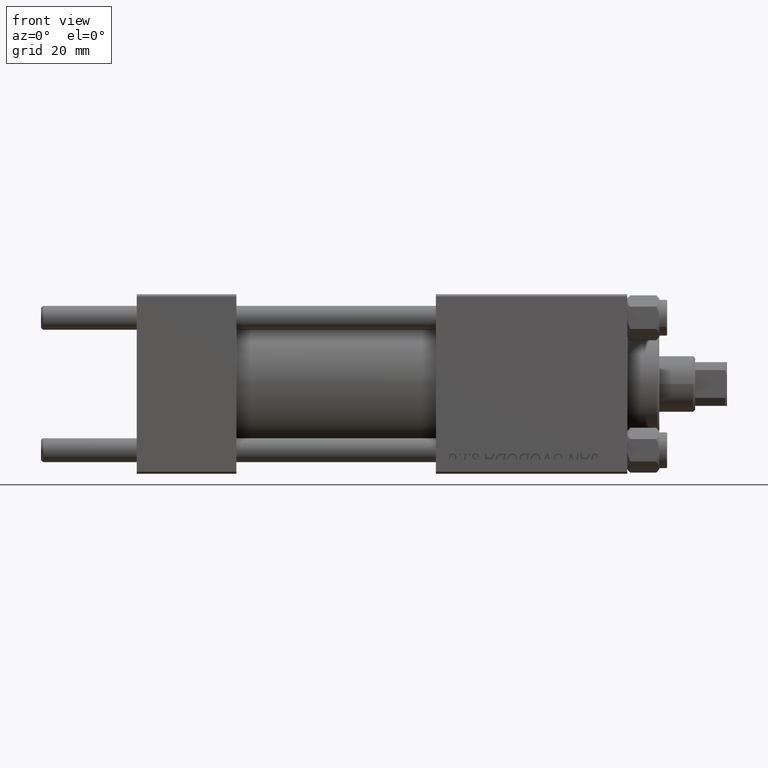
[diagram: clean part render]
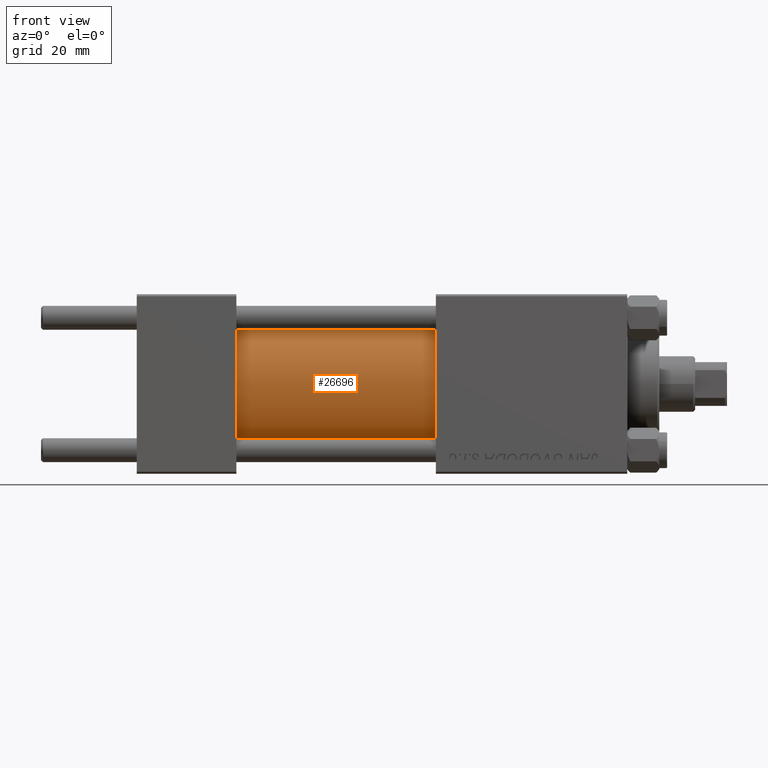
[diagram: same view with one face highlighted and labeled with its STEP entity id]
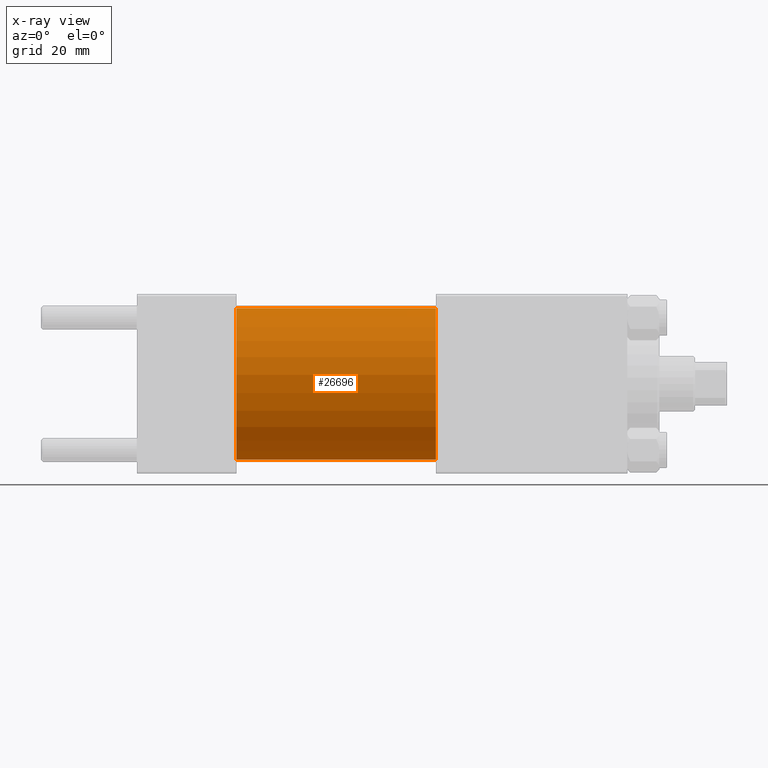
[diagram: x-ray of the same camera — body ghosted, the highlighted face saturated]
A machine part, front view. The second image highlights one B-rep face of the part: STEP entity #26696.
The next image is the same camera in x-ray: the body ghosted, the highlighted face saturated — about 0% of this face is hidden behind the body in this view.
In plain terms, the highlighted cylindrical surface (partial cylindrical patch) has radius 19 mm, axis along (-1, -0, -0).
Its self-contained STEP definition (entity closure, byte-faithful):
#1327 = AXIS2_PLACEMENT_3D ( 'NONE', #24043, #47459, #35855 ) ;
#4139 = DIRECTION ( 'NONE',  ( 1.000000000000000000, 0.000000000000000000, 0.000000000000000000 ) ) ;
#6711 = ORIENTED_EDGE ( 'NONE', *, *, #24702, .F. ) ;
#7908 = VERTEX_POINT ( 'NONE', #21181 ) ;
#9449 = DIRECTION ( 'NONE',  ( 0.000000000000000000, 0.000000000000000000, 1.000000000000000000 ) ) ;
#10305 = EDGE_CURVE ( 'NONE', #29652, #7908, #41830, .T. ) ;
#10868 = ORIENTED_EDGE ( 'NONE', *, *, #10305, .T. ) ;
#11763 = VERTEX_POINT ( 'NONE', #22061 ) ;
#12226 = LINE ( 'NONE', #49771, #33546 ) ;
#14812 = EDGE_LOOP ( 'NONE', ( #22509, #6711, #25976, #10868 ) ) ;
#15234 = DIRECTION ( 'NONE',  ( 0.000000000000000000, 0.000000000000000000, -1.000000000000000000 ) ) ;
#16550 = CIRCLE ( 'NONE', #30326, 19.00000000000000000 ) ;
#17649 = EDGE_CURVE ( 'NONE', #11763, #7908, #33033, .T. ) ;
#21181 = CARTESIAN_POINT ( 'NONE',  ( 25.00000000000000000, 2.326828918379970970E-15, -19.00000000000000000 ) ) ;
#21545 = DIRECTION ( 'NONE',  ( 1.000000000000000000, -0.000000000000000000, 0.000000000000000000 ) ) ;
#22061 = CARTESIAN_POINT ( 'NONE',  ( 75.00000000000001421, 2.326828918379970970E-15, -19.00000000000000000 ) ) ;
#22509 = ORIENTED_EDGE ( 'NONE', *, *, #17649, .F. ) ;
#23543 = CARTESIAN_POINT ( 'NONE',  ( 75.00000000000001421, 0.000000000000000000, 0.000000000000000000 ) ) ;
#24043 = CARTESIAN_POINT ( 'NONE',  ( 75.00000000000001421, 0.000000000000000000, 0.000000000000000000 ) ) ;
#24702 = EDGE_CURVE ( 'NONE', #45552, #11763, #16550, .T. ) ;
#25071 = CARTESIAN_POINT ( 'NONE',  ( 25.00000000000000000, 0.000000000000000000, 0.000000000000000000 ) ) ;
#25976 = ORIENTED_EDGE ( 'NONE', *, *, #27410, .T. ) ;
#26696 = ADVANCED_FACE ( 'NONE', ( #43929 ), #36114, .T. ) ;
#27410 = EDGE_CURVE ( 'NONE', #45552, #29652, #12226, .T. ) ;
#29015 = CARTESIAN_POINT ( 'NONE',  ( 75.00000000000001421, 2.326828918379970970E-15, -19.00000000000000000 ) ) ;
#29652 = VERTEX_POINT ( 'NONE', #31113 ) ;
#30326 = AXIS2_PLACEMENT_3D ( 'NONE', #23543, #4139, #15234 ) ;
#31113 = CARTESIAN_POINT ( 'NONE',  ( 25.00000000000000000, 0.000000000000000000, 19.00000000000000000 ) ) ;
#33033 = LINE ( 'NONE', #29015, #49445 ) ;
#33378 = CARTESIAN_POINT ( 'NONE',  ( 75.00000000000001421, 0.000000000000000000, 19.00000000000000000 ) ) ;
#33546 = VECTOR ( 'NONE', #45756, 1000.000000000000000 ) ;
#35855 = DIRECTION ( 'NONE',  ( 0.000000000000000000, 0.000000000000000000, 1.000000000000000000 ) ) ;
#36114 = CYLINDRICAL_SURFACE ( 'NONE', #1327, 19.00000000000000000 ) ;
#41830 = CIRCLE ( 'NONE', #45058, 19.00000000000000000 ) ;
#43929 = FACE_OUTER_BOUND ( 'NONE', #14812, .T. ) ;
#44397 = DIRECTION ( 'NONE',  ( -1.000000000000000000, -0.000000000000000000, -0.000000000000000000 ) ) ;
#45058 = AXIS2_PLACEMENT_3D ( 'NONE', #25071, #21545, #9449 ) ;
#45552 = VERTEX_POINT ( 'NONE', #33378 ) ;
#45756 = DIRECTION ( 'NONE',  ( -1.000000000000000000, -0.000000000000000000, -0.000000000000000000 ) ) ;
#47459 = DIRECTION ( 'NONE',  ( -1.000000000000000000, -0.000000000000000000, -0.000000000000000000 ) ) ;
#49445 = VECTOR ( 'NONE', #44397, 1000.000000000000000 ) ;
#49771 = CARTESIAN_POINT ( 'NONE',  ( 75.00000000000001421, 0.000000000000000000, 19.00000000000000000 ) ) ;